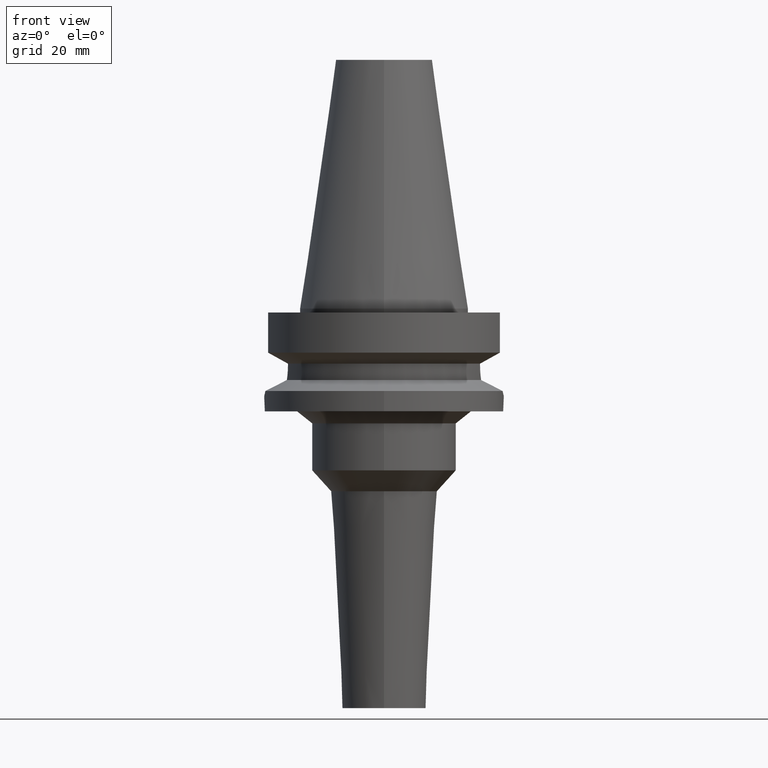
[diagram: clean part render]
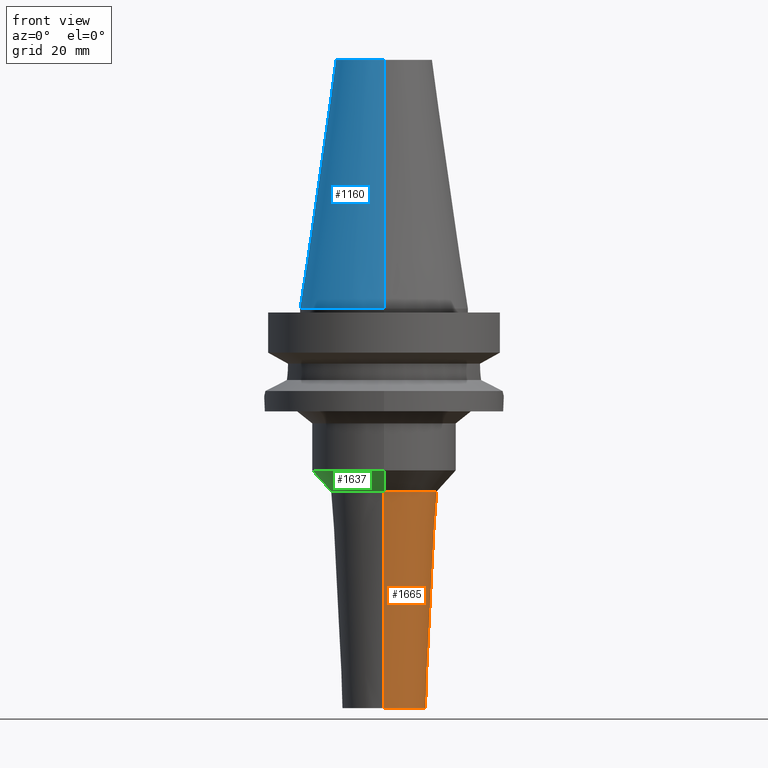
[diagram: same view with three faces highlighted in distinct colors, each labeled with its STEP entity id]
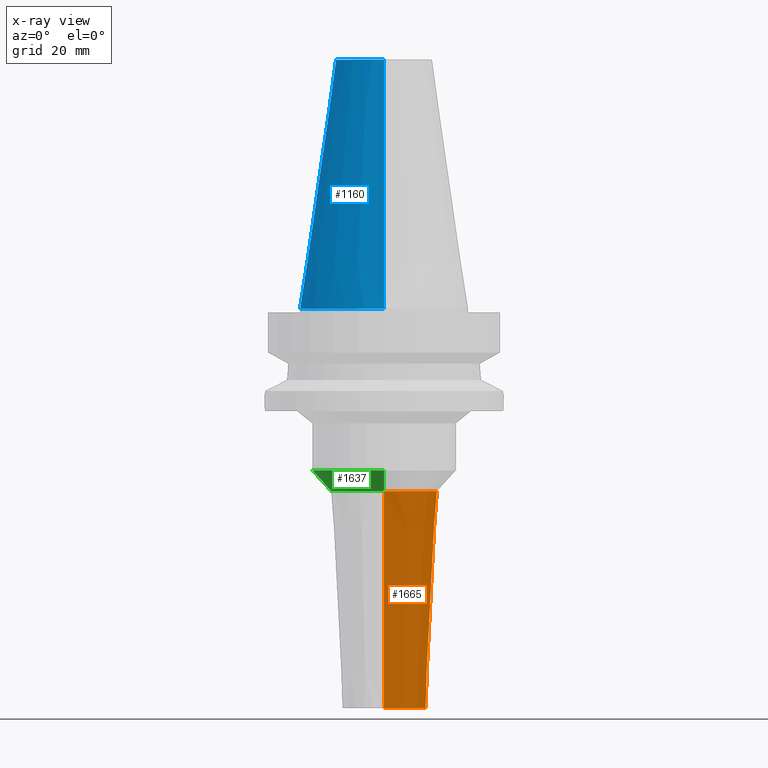
[diagram: x-ray of the same camera — body ghosted, the three highlighted faces saturated]
A machine part, front view with three faces highlighted in distinct colors.
The next image is the same camera in x-ray (body ghosted, the three faces saturated) — at least one of them is partly hidden behind the body in this view.
Their STEP definitions:

[orange] entity #1665 — the highlighted conical surface has half-angle 3 deg.
#743=DIRECTION('',(0.E0,-5.233595624294E-2,-9.986295347546E-1));
#744=VECTOR('',#743,5.707822372188E1);
#745=CARTESIAN_POINT('',(0.E0,1.398724341914E1,-4.8E1));
#746=LINE('',#745,#744);
#750=CARTESIAN_POINT('',(0.E0,0.E0,-4.8E1));
#751=DIRECTION('',(0.E0,0.E0,1.E0));
#752=DIRECTION('',(0.E0,-1.E0,0.E0));
#753=AXIS2_PLACEMENT_3D('',#750,#751,#752);
#758=DIRECTION('',(0.E0,5.233595624294E-2,-9.986295347546E-1));
#759=VECTOR('',#758,5.707822372188E1);
#760=CARTESIAN_POINT('',(0.E0,-1.398724341914E1,-4.8E1));
#761=LINE('',#760,#759);
#765=CARTESIAN_POINT('',(0.E0,0.E0,-1.05E2));
#766=DIRECTION('',(0.E0,0.E0,1.E0));
#767=DIRECTION('',(0.E0,-1.E0,0.E0));
#768=AXIS2_PLACEMENT_3D('',#765,#766,#767);
#1019=CARTESIAN_POINT('',(0.E0,-1.1E1,-1.05E2));
#1020=CARTESIAN_POINT('',(0.E0,1.1E1,-1.05E2));
#1021=VERTEX_POINT('',#1019);
#1022=VERTEX_POINT('',#1020);
#1023=CARTESIAN_POINT('',(0.E0,1.398724341914E1,-4.8E1));
#1024=VERTEX_POINT('',#1023);
#1025=CARTESIAN_POINT('',(0.E0,-1.398724341914E1,-4.8E1));
#1026=VERTEX_POINT('',#1025);
#1651=CARTESIAN_POINT('',(0.E0,0.E0,-7.65E1));
#1652=DIRECTION('',(0.E0,0.E0,1.E0));
#1653=DIRECTION('',(0.E0,1.E0,0.E0));
#1654=AXIS2_PLACEMENT_3D('',#1651,#1652,#1653);
#1655=CONICAL_SURFACE('',#1654,1.249362170957E1,3.E0);
#1657=ORIENTED_EDGE('',*,*,#1656,.T.);
#1659=ORIENTED_EDGE('',*,*,#1658,.F.);
#1661=ORIENTED_EDGE('',*,*,#1660,.F.);
#1662=ORIENTED_EDGE('',*,*,#1644,.T.);
#1663=EDGE_LOOP('',(#1657,#1659,#1661,#1662));
#1664=FACE_OUTER_BOUND('',#1663,.F.);
#754=CIRCLE('',#753,1.398724341914E1);
#769=CIRCLE('',#768,1.1E1);
#1644=EDGE_CURVE('',#1026,#1024,#754,.T.);
#1656=EDGE_CURVE('',#1024,#1022,#746,.T.);
#1658=EDGE_CURVE('',#1021,#1022,#769,.T.);
#1660=EDGE_CURVE('',#1026,#1021,#761,.T.);
#1665=ADVANCED_FACE('',(#1664),#1655,.T.);

[blue] entity #1160 — the highlighted conical surface has half-angle 8.297 deg.
#17=CARTESIAN_POINT('',(0.E0,1.625106302469E-14,6.54E1));
#18=DIRECTION('',(0.E0,0.E0,-1.E0));
#19=DIRECTION('',(0.E0,-1.E0,0.E0));
#20=AXIS2_PLACEMENT_3D('',#17,#18,#19);
#50=DIRECTION('',(0.E0,-1.443043893540E-1,-9.895333461856E-1));
#51=VECTOR('',#50,6.609175956738E1);
#52=CARTESIAN_POINT('',(0.E0,-1.268766899430E1,6.54E1));
#53=LINE('',#52,#51);
#57=CARTESIAN_POINT('',(0.E0,1.625106302469E-14,2.842170943040E-14));
#58=DIRECTION('',(0.E0,0.E0,-1.E0));
#59=DIRECTION('',(0.E0,-1.E0,0.E0));
#60=AXIS2_PLACEMENT_3D('',#57,#58,#59);
#65=DIRECTION('',(0.E0,1.443043893540E-1,-9.895333461856E-1));
#66=VECTOR('',#65,6.609175956738E1);
#67=CARTESIAN_POINT('',(0.E0,1.268766899430E1,6.54E1));
#68=LINE('',#67,#66);
#979=CARTESIAN_POINT('',(0.E0,-1.268766899430E1,6.54E1));
#980=CARTESIAN_POINT('',(0.E0,1.268766899430E1,6.54E1));
#981=VERTEX_POINT('',#979);
#982=VERTEX_POINT('',#980);
#1116=CARTESIAN_POINT('',(0.E0,2.2225E1,6.394884621841E-14));
#1117=VERTEX_POINT('',#1116);
#1118=CARTESIAN_POINT('',(0.E0,-2.2225E1,6.394884621841E-14));
#1119=VERTEX_POINT('',#1118);
#1146=CARTESIAN_POINT('',(0.E0,1.625106302469E-14,3.27E1));
#1147=DIRECTION('',(0.E0,0.E0,-1.E0));
#1148=DIRECTION('',(0.E0,-1.E0,0.E0));
#1149=AXIS2_PLACEMENT_3D('',#1146,#1147,#1148);
#1150=CONICAL_SURFACE('',#1149,1.745633449715E1,8.297E0);
#1152=ORIENTED_EDGE('',*,*,#1151,.F.);
#1153=ORIENTED_EDGE('',*,*,#1133,.F.);
#1155=ORIENTED_EDGE('',*,*,#1154,.T.);
#1157=ORIENTED_EDGE('',*,*,#1156,.T.);
#1158=EDGE_LOOP('',(#1152,#1153,#1155,#1157));
#1159=FACE_OUTER_BOUND('',#1158,.F.);
#21=CIRCLE('',#20,1.268766899430E1);
#61=CIRCLE('',#60,2.2225E1);
#1133=EDGE_CURVE('',#981,#982,#21,.T.);
#1151=EDGE_CURVE('',#982,#1117,#68,.T.);
#1154=EDGE_CURVE('',#981,#1119,#53,.T.);
#1156=EDGE_CURVE('',#1119,#1117,#61,.T.);
#1160=ADVANCED_FACE('',(#1159),#1150,.T.);

[green] entity #1637 — the highlighted conical surface has half-angle 42.346 deg.
#705=CARTESIAN_POINT('',(0.E0,0.E0,-4.25E1));
#706=DIRECTION('',(0.E0,0.E0,1.E0));
#707=DIRECTION('',(0.E0,1.E0,0.E0));
#708=AXIS2_PLACEMENT_3D('',#705,#706,#707);
#713=DIRECTION('',(0.E0,6.736108080542E-1,-7.390862461666E-1));
#714=VECTOR('',#713,7.441621364933E0);
#715=CARTESIAN_POINT('',(0.E0,-1.9E1,-4.25E1));
#716=LINE('',#715,#714);
#720=CARTESIAN_POINT('',(0.E0,0.E0,-4.8E1));
#721=DIRECTION('',(0.E0,0.E0,-1.E0));
#722=DIRECTION('',(0.E0,-1.E0,0.E0));
#723=AXIS2_PLACEMENT_3D('',#720,#721,#722);
#728=DIRECTION('',(0.E0,-6.736108080542E-1,-7.390862461666E-1));
#729=VECTOR('',#728,7.441621364933E0);
#730=CARTESIAN_POINT('',(0.E0,1.9E1,-4.25E1));
#731=LINE('',#730,#729);
#1023=CARTESIAN_POINT('',(0.E0,1.398724341914E1,-4.8E1));
#1024=VERTEX_POINT('',#1023);
#1025=CARTESIAN_POINT('',(0.E0,-1.398724341914E1,-4.8E1));
#1026=VERTEX_POINT('',#1025);
#1027=CARTESIAN_POINT('',(0.E0,1.9E1,-4.25E1));
#1028=VERTEX_POINT('',#1027);
#1029=CARTESIAN_POINT('',(0.E0,-1.9E1,-4.25E1));
#1030=VERTEX_POINT('',#1029);
#1623=CARTESIAN_POINT('',(0.E0,0.E0,-4.525E1));
#1624=DIRECTION('',(0.E0,0.E0,1.E0));
#1625=DIRECTION('',(0.E0,1.E0,0.E0));
#1626=AXIS2_PLACEMENT_3D('',#1623,#1624,#1625);
#1627=CONICAL_SURFACE('',#1626,1.649362170957E1,4.234636416911E1);
#1629=ORIENTED_EDGE('',*,*,#1628,.F.);
#1630=ORIENTED_EDGE('',*,*,#1618,.T.);
#1632=ORIENTED_EDGE('',*,*,#1631,.T.);
#1634=ORIENTED_EDGE('',*,*,#1633,.T.);
#1635=EDGE_LOOP('',(#1629,#1630,#1632,#1634));
#1636=FACE_OUTER_BOUND('',#1635,.F.);
#709=CIRCLE('',#708,1.9E1);
#724=CIRCLE('',#723,1.398724341913E1);
#1618=EDGE_CURVE('',#1028,#1030,#709,.T.);
#1628=EDGE_CURVE('',#1028,#1024,#731,.T.);
#1631=EDGE_CURVE('',#1030,#1026,#716,.T.);
#1633=EDGE_CURVE('',#1026,#1024,#724,.T.);
#1637=ADVANCED_FACE('',(#1636),#1627,.T.);